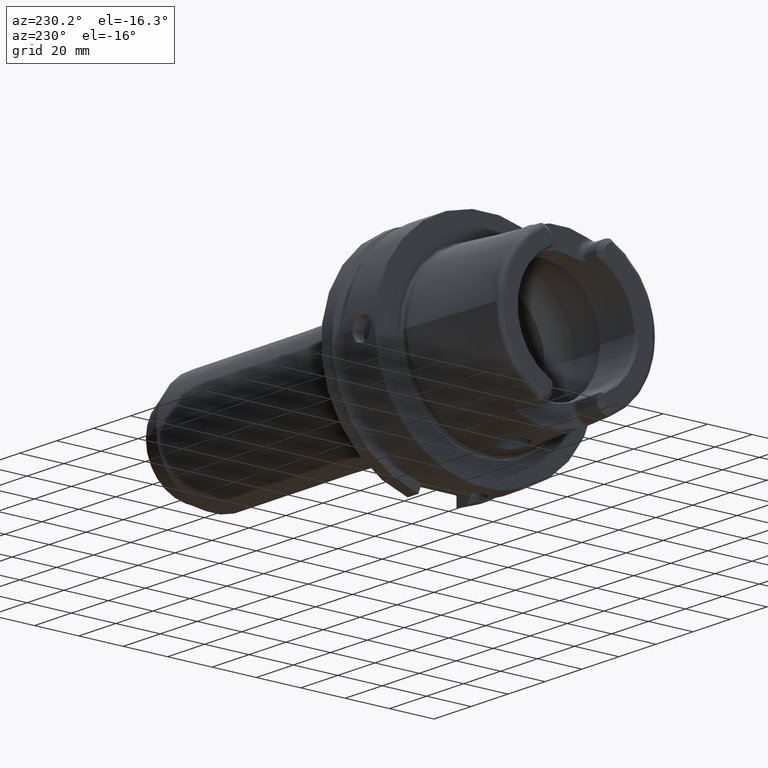
[diagram: clean part render]
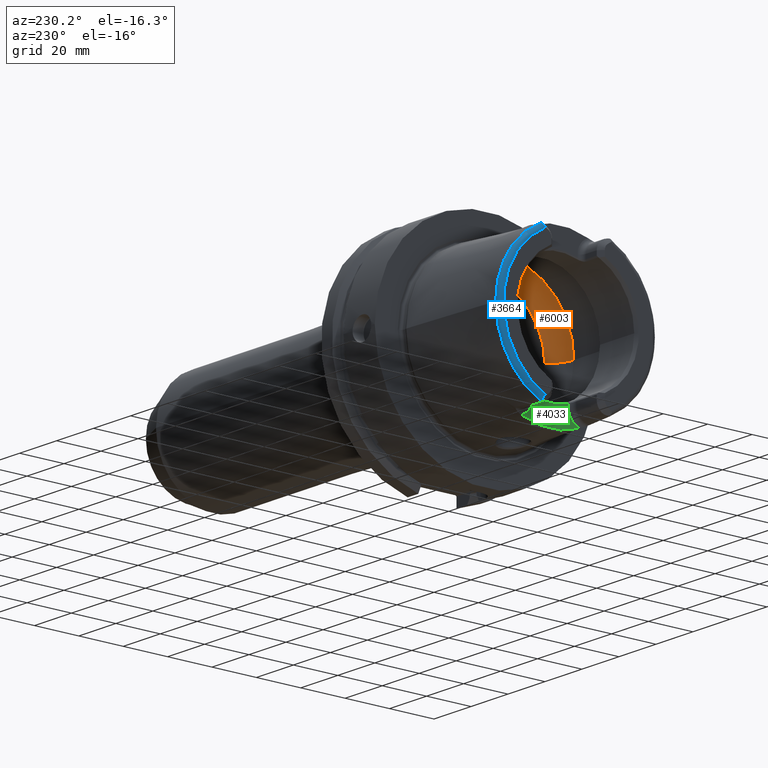
[diagram: same view with three faces highlighted in distinct colors, each labeled with its STEP entity id]
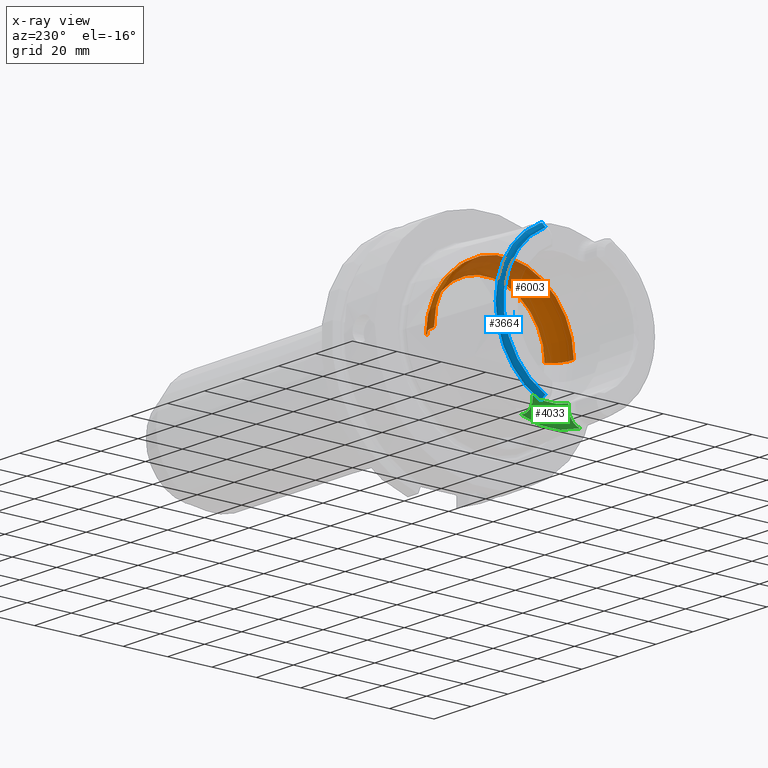
[diagram: x-ray of the same camera — body ghosted, the three highlighted faces saturated]
A machine part, auxiliary view with three faces highlighted in distinct colors.
The next image is the same camera in x-ray (body ghosted, the three faces saturated) — at least one of them is partly hidden behind the body in this view.
Their STEP definitions:

[orange] entity #6003 — the highlighted toroidal blend (fillet) surface has major radius 19.5 mm and minor (blend) radius 12 mm.
#2250=CARTESIAN_POINT('',(-9.E0,0.E0,3.147008518506E1));
#2251=CARTESIAN_POINT('',(-9.E0,2.141252053900E-1,3.147008518506E1));
#2252=CARTESIAN_POINT('',(-9.022897579641E0,6.436731047292E-1,
3.146736073712E1));
#2253=CARTESIAN_POINT('',(-9.127427069178E0,1.286248325661E0,3.145454181001E1));
#2254=CARTESIAN_POINT('',(-9.301031145484E0,1.913730198969E0,3.143197920586E1));
#2255=CARTESIAN_POINT('',(-9.539946842554E0,2.515068696018E0,3.139832080387E1));
#2256=CARTESIAN_POINT('',(-9.738529982809E0,2.891645116602E0,3.136752560017E1));
#2257=CARTESIAN_POINT('',(-9.846794344809E0,3.073185883624E0,3.134972932139E1));
#2259=CARTESIAN_POINT('',(-9.846794344809E0,-3.073185883624E0,
3.134972932139E1));
#2260=CARTESIAN_POINT('',(-9.738534471789E0,-2.891652643851E0,
3.136752486228E1));
#2261=CARTESIAN_POINT('',(-9.539946477828E0,-2.515078628379E0,
3.139832107651E1));
#2262=CARTESIAN_POINT('',(-9.300974895981E0,-1.913573808680E0,
3.143198691417E1));
#2263=CARTESIAN_POINT('',(-9.127396838585E0,-1.286102505522E0,
3.145454553504E1));
#2264=CARTESIAN_POINT('',(-9.022886850943E0,-6.435548392987E-1,
3.146736203025E1));
#2265=CARTESIAN_POINT('',(-9.E0,-2.140793620984E-1,3.147008518506E1));
#2266=CARTESIAN_POINT('',(-9.E0,0.E0,3.147008518506E1));
#2268=CARTESIAN_POINT('',(-1.E-1,0.E0,0.E0));
#2269=DIRECTION('',(1.E0,0.E0,0.E0));
#2270=DIRECTION('',(0.E0,1.E0,0.E0));
#2271=AXIS2_PLACEMENT_3D('',#2268,#2269,#2270);
#2297=CARTESIAN_POINT('',(-9.846794344809E0,0.E0,0.E0));
#2298=DIRECTION('',(1.E0,0.E0,0.E0));
#2299=DIRECTION('',(0.E0,1.E0,0.E0));
#2300=AXIS2_PLACEMENT_3D('',#2297,#2298,#2299);
#2302=CARTESIAN_POINT('',(-9.846794344809E0,0.E0,0.E0));
#2303=DIRECTION('',(1.E0,0.E0,0.E0));
#2304=DIRECTION('',(0.E0,-9.756145662299E-2,9.952295022665E-1));
#2305=AXIS2_PLACEMENT_3D('',#2302,#2303,#2304);
#2406=CARTESIAN_POINT('',(-9.846794344809E0,1.95E1,0.E0));
#2407=DIRECTION('',(0.E0,0.E0,1.E0));
#2408=DIRECTION('',(8.122328620674E-1,5.833333333333E-1,0.E0));
#2409=AXIS2_PLACEMENT_3D('',#2406,#2407,#2408);
#2416=CARTESIAN_POINT('',(-9.846794344809E0,-1.95E1,0.E0));
#2417=DIRECTION('',(0.E0,0.E0,-1.E0));
#2418=DIRECTION('',(8.122328620674E-1,-5.833333333333E-1,0.E0));
#2419=AXIS2_PLACEMENT_3D('',#2416,#2417,#2418);
#2921=CARTESIAN_POINT('',(-1.E-1,2.65E1,0.E0));
#2922=VERTEX_POINT('',#2921);
#2923=CARTESIAN_POINT('',(-9.846794344809E0,3.15E1,0.E0));
#2924=VERTEX_POINT('',#2923);
#2933=CARTESIAN_POINT('',(-1.E-1,-2.65E1,0.E0));
#2934=VERTEX_POINT('',#2933);
#2935=CARTESIAN_POINT('',(-9.846794344809E0,-3.15E1,0.E0));
#2936=VERTEX_POINT('',#2935);
#3102=VERTEX_POINT('',#2250);
#3103=VERTEX_POINT('',#2257);
#3104=VERTEX_POINT('',#2259);
#5984=CARTESIAN_POINT('',(-9.846794344809E0,0.E0,0.E0));
#5985=DIRECTION('',(1.E0,0.E0,0.E0));
#5986=DIRECTION('',(0.E0,-1.E0,0.E0));
#5987=AXIS2_PLACEMENT_3D('',#5984,#5985,#5986);
#5988=TOROIDAL_SURFACE('',#5987,1.95E1,1.2E1);
#5989=ORIENTED_EDGE('',*,*,#5961,.F.);
#5990=ORIENTED_EDGE('',*,*,#5687,.F.);
#5992=ORIENTED_EDGE('',*,*,#5991,.T.);
#5994=ORIENTED_EDGE('',*,*,#5993,.F.);
#5996=ORIENTED_EDGE('',*,*,#5995,.F.);
#5998=ORIENTED_EDGE('',*,*,#5997,.T.);
#6000=ORIENTED_EDGE('',*,*,#5999,.T.);
#6001=EDGE_LOOP('',(#5989,#5990,#5992,#5994,#5996,#5998,#6000));
#6002=FACE_OUTER_BOUND('',#6001,.F.);
#6003=ADVANCED_FACE('',(#6002),#5988,.F.);
#2258=B_SPLINE_CURVE_WITH_KNOTS('',3,(#2250,#2251,#2252,#2253,#2254,#2255,#2256,
#2257),.UNSPECIFIED.,.F.,.F.,(4,1,1,1,1,4),(0.E0,2.E-1,4.E-1,6.E-1,8.E-1,1.E0),
.UNSPECIFIED.);
#2267=B_SPLINE_CURVE_WITH_KNOTS('',3,(#2259,#2260,#2261,#2262,#2263,#2264,#2265,
#2266),.UNSPECIFIED.,.F.,.F.,(4,1,1,1,1,4),(0.E0,2.E-1,4.E-1,6.E-1,8.E-1,1.E0),
.UNSPECIFIED.);
#2272=CIRCLE('',#2271,2.65E1);
#2301=CIRCLE('',#2300,3.15E1);
#2306=CIRCLE('',#2305,3.15E1);
#2410=CIRCLE('',#2409,1.2E1);
#2420=CIRCLE('',#2419,1.2E1);
#5687=EDGE_CURVE('',#3104,#3102,#2267,.T.);
#5961=EDGE_CURVE('',#3102,#3103,#2258,.T.);
#5991=EDGE_CURVE('',#3104,#2936,#2306,.T.);
#5993=EDGE_CURVE('',#2934,#2936,#2420,.T.);
#5995=EDGE_CURVE('',#2922,#2934,#2272,.T.);
#5997=EDGE_CURVE('',#2922,#2924,#2410,.T.);
#5999=EDGE_CURVE('',#2924,#3103,#2301,.T.);

[blue] entity #3664 — the highlighted toroidal blend (fillet) surface has major radius 33.6002 mm and minor (blend) radius 2 mm.
#284=CARTESIAN_POINT('',(-4.885415732441E1,1.524233599545E1,-3.196E1));
#285=CARTESIAN_POINT('',(-4.892042682917E1,1.528184575722E1,-3.190647917074E1));
#286=CARTESIAN_POINT('',(-4.904907337055E1,1.534921107261E1,-3.179688001462E1));
#287=CARTESIAN_POINT('',(-4.923089295558E1,1.541590864687E1,-3.162456500561E1));
#288=CARTESIAN_POINT('',(-4.939996141290E1,1.544678596655E1,-3.144531182725E1));
#289=CARTESIAN_POINT('',(-4.955291678113E1,1.544062482823E1,-3.126231590503E1));
#290=CARTESIAN_POINT('',(-4.968961398491E1,1.539492909283E1,-3.107422253444E1));
#291=CARTESIAN_POINT('',(-4.980222556701E1,1.531137807264E1,-3.089122966690E1));
#292=CARTESIAN_POINT('',(-4.98920182E1,1.518913217588E1,-3.071134017670E1));
#293=CARTESIAN_POINT('',(-4.995490319930E1,1.503380242251E1,-3.054277251898E1));
#294=CARTESIAN_POINT('',(-4.999193874033E1,1.484926520259E1,-3.038665452223E1));
#295=CARTESIAN_POINT('',(-5.E1,1.470886141623E1,-3.029144627288E1));
#296=CARTESIAN_POINT('',(-5.E1,1.463423248617E1,-3.024586108239E1));
#298=CARTESIAN_POINT('',(-4.810007448473E1,1.567653238626E1,-3.196E1));
#299=CARTESIAN_POINT('',(-4.814854926161E1,1.567101764283E1,-3.196E1));
#300=CARTESIAN_POINT('',(-4.824699718528E1,1.565188578280E1,-3.196E1));
#301=CARTESIAN_POINT('',(-4.840101233225E1,1.559467216883E1,-3.196E1));
#302=CARTESIAN_POINT('',(-4.855439166438E1,1.550852477714E1,-3.196E1));
#303=CARTESIAN_POINT('',(-4.870516089830E1,1.539385143023E1,-3.196E1));
#304=CARTESIAN_POINT('',(-4.880487439669E1,1.529641023181E1,-3.196E1));
#305=CARTESIAN_POINT('',(-4.885415732441E1,1.524233599545E1,-3.196E1));
#307=CARTESIAN_POINT('',(-4.810007448473E1,0.E0,0.E0));
#308=DIRECTION('',(-1.E0,0.E0,0.E0));
#309=DIRECTION('',(0.E0,1.E0,0.E0));
#310=AXIS2_PLACEMENT_3D('',#307,#308,#309);
#312=CARTESIAN_POINT('',(-4.810007448473E1,0.E0,0.E0));
#313=DIRECTION('',(1.E0,0.E0,0.E0));
#314=DIRECTION('',(0.E0,1.E0,0.E0));
#315=AXIS2_PLACEMENT_3D('',#312,#313,#314);
#317=CARTESIAN_POINT('',(-4.885415732441E1,1.524233599545E1,3.196E1));
#318=CARTESIAN_POINT('',(-4.880489671373E1,1.529638574510E1,3.196E1));
#319=CARTESIAN_POINT('',(-4.870522589790E1,1.539380534287E1,3.196E1));
#320=CARTESIAN_POINT('',(-4.855425205604E1,1.550861743949E1,3.196E1));
#321=CARTESIAN_POINT('',(-4.840102922174E1,1.559466231398E1,3.196E1));
#322=CARTESIAN_POINT('',(-4.824685927015E1,1.565193052527E1,3.196E1));
#323=CARTESIAN_POINT('',(-4.814849310230E1,1.567102403180E1,3.196E1));
#324=CARTESIAN_POINT('',(-4.810007448473E1,1.567653238626E1,3.196E1));
#326=CARTESIAN_POINT('',(-5.E1,1.463423248617E1,3.024586108239E1));
#327=CARTESIAN_POINT('',(-5.E1,1.470887052533E1,3.029145183695E1));
#328=CARTESIAN_POINT('',(-4.999193668301E1,1.484929336697E1,3.038667413649E1));
#329=CARTESIAN_POINT('',(-4.995488930905E1,1.503385996795E1,3.054282394569E1));
#330=CARTESIAN_POINT('',(-4.989197500232E1,1.518921649175E1,3.071144229779E1));
#331=CARTESIAN_POINT('',(-4.980215470263E1,1.531145218524E1,3.089135797532E1));
#332=CARTESIAN_POINT('',(-4.968951481558E1,1.539498007461E1,3.107436988164E1));
#333=CARTESIAN_POINT('',(-4.955280820452E1,1.544064650585E1,3.126245637594E1));
#334=CARTESIAN_POINT('',(-4.939976008409E1,1.544677878772E1,3.144554335861E1));
#335=CARTESIAN_POINT('',(-4.923056226109E1,1.541582067272E1,3.162489877544E1));
#336=CARTESIAN_POINT('',(-4.904873698401E1,1.534905210810E1,3.179717709171E1));
#337=CARTESIAN_POINT('',(-4.892028850269E1,1.528176328722E1,3.190659088650E1));
#338=CARTESIAN_POINT('',(-4.885415732441E1,1.524233599545E1,3.196E1));
#340=CARTESIAN_POINT('',(-5.E1,0.E0,0.E0));
#341=DIRECTION('',(-1.E0,0.E0,0.E0));
#342=DIRECTION('',(0.E0,4.355401503799E-1,9.001693048572E-1));
#343=AXIS2_PLACEMENT_3D('',#340,#341,#342);
#2905=CARTESIAN_POINT('',(-4.810007448473E1,3.559768626831E1,0.E0));
#2906=VERTEX_POINT('',#2905);
#2945=CARTESIAN_POINT('',(-4.810007448473E1,1.567653238626E1,3.196E1));
#2946=VERTEX_POINT('',#2945);
#2977=CARTESIAN_POINT('',(-5.E1,1.463423248617E1,3.024586108239E1));
#2978=VERTEX_POINT('',#2977);
#2979=VERTEX_POINT('',#338);
#3025=CARTESIAN_POINT('',(-4.810007448473E1,1.567653238626E1,-3.196E1));
#3026=VERTEX_POINT('',#3025);
#3068=CARTESIAN_POINT('',(-5.E1,1.463423248617E1,-3.024586108239E1));
#3069=VERTEX_POINT('',#3068);
#3070=VERTEX_POINT('',#284);
#3646=CARTESIAN_POINT('',(-4.8E1,0.E0,0.E0));
#3647=DIRECTION('',(1.E0,0.E0,0.E0));
#3648=DIRECTION('',(0.E0,-1.E0,0.E0));
#3649=AXIS2_PLACEMENT_3D('',#3646,#3647,#3648);
#3650=TOROIDAL_SURFACE('',#3649,3.360019156306E1,2.E0);
#3652=ORIENTED_EDGE('',*,*,#3651,.F.);
#3654=ORIENTED_EDGE('',*,*,#3653,.F.);
#3656=ORIENTED_EDGE('',*,*,#3655,.F.);
#3657=ORIENTED_EDGE('',*,*,#3372,.T.);
#3659=ORIENTED_EDGE('',*,*,#3658,.F.);
#3660=ORIENTED_EDGE('',*,*,#3637,.F.);
#3661=ORIENTED_EDGE('',*,*,#3436,.T.);
#3662=EDGE_LOOP('',(#3652,#3654,#3656,#3657,#3659,#3660,#3661));
#3663=FACE_OUTER_BOUND('',#3662,.F.);
#3664=ADVANCED_FACE('',(#3663),#3650,.T.);
#297=B_SPLINE_CURVE_WITH_KNOTS('',3,(#284,#285,#286,#287,#288,#289,#290,#291,
#292,#293,#294,#295,#296),.UNSPECIFIED.,.F.,.F.,(4,1,1,1,1,1,1,1,1,1,4),(0.E0,
1.E-1,2.E-1,3.E-1,4.E-1,5.E-1,6.E-1,7.E-1,8.E-1,9.E-1,1.E0),.UNSPECIFIED.);
#306=B_SPLINE_CURVE_WITH_KNOTS('',3,(#298,#299,#300,#301,#302,#303,#304,#305),
.UNSPECIFIED.,.F.,.F.,(4,1,1,1,1,4),(0.E0,2.E-1,4.E-1,6.E-1,8.E-1,1.E0),
.UNSPECIFIED.);
#311=CIRCLE('',#310,3.559768626831E1);
#316=CIRCLE('',#315,3.559768626831E1);
#325=B_SPLINE_CURVE_WITH_KNOTS('',3,(#317,#318,#319,#320,#321,#322,#323,#324),
.UNSPECIFIED.,.F.,.F.,(4,1,1,1,1,4),(0.E0,2.E-1,4.E-1,6.E-1,8.E-1,1.E0),
.UNSPECIFIED.);
#339=B_SPLINE_CURVE_WITH_KNOTS('',3,(#326,#327,#328,#329,#330,#331,#332,#333,
#334,#335,#336,#337,#338),.UNSPECIFIED.,.F.,.F.,(4,1,1,1,1,1,1,1,1,1,4),(0.E0,
1.E-1,2.E-1,3.E-1,4.E-1,5.E-1,6.E-1,7.E-1,8.E-1,9.E-1,1.E0),.UNSPECIFIED.);
#344=CIRCLE('',#343,3.360019156306E1);
#3372=EDGE_CURVE('',#2906,#2946,#316,.T.);
#3436=EDGE_CURVE('',#2978,#3069,#344,.T.);
#3637=EDGE_CURVE('',#2978,#2979,#339,.T.);
#3651=EDGE_CURVE('',#3070,#3069,#297,.T.);
#3653=EDGE_CURVE('',#3026,#3070,#306,.T.);
#3655=EDGE_CURVE('',#2906,#3026,#311,.T.);
#3658=EDGE_CURVE('',#2979,#2946,#325,.T.);

[green] entity #4033 — the highlighted planar face has unit normal (-1, 0, 0).
#549=CARTESIAN_POINT('',(-3.5E1,0.E0,0.E0));
#550=DIRECTION('',(1.E0,0.E0,0.E0));
#551=DIRECTION('',(0.E0,-3.659355944317E-1,-9.306401779033E-1));
#552=AXIS2_PLACEMENT_3D('',#549,#550,#551);
#659=CARTESIAN_POINT('',(-3.5E1,1.326662904053E1,-3.373942900971E1));
#700=CARTESIAN_POINT('',(-3.5E1,-8.009999999994E0,-2.576044140549E1));
#701=CARTESIAN_POINT('',(-3.5E1,-7.269616392494E0,-2.599521452766E1));
#702=CARTESIAN_POINT('',(-3.5E1,-5.774680607735E0,-2.639793295020E1));
#703=CARTESIAN_POINT('',(-3.5E1,-3.481759859027E0,-2.680464578135E1));
#704=CARTESIAN_POINT('',(-3.5E1,-1.163574268408E0,-2.700848033442E1));
#705=CARTESIAN_POINT('',(-3.5E1,1.163574229636E0,-2.700848033529E1));
#706=CARTESIAN_POINT('',(-3.5E1,3.481759771636E0,-2.680464579107E1));
#707=CARTESIAN_POINT('',(-3.5E1,5.774680487919E0,-2.639793297771E1));
#708=CARTESIAN_POINT('',(-3.5E1,7.269616343063E0,-2.599521454333E1));
#709=CARTESIAN_POINT('',(-3.5E1,8.009999999993E0,-2.576044140549E1));
#711=DIRECTION('',(0.E0,-5.262912738182E-12,-1.E0));
#712=VECTOR('',#711,1.199558594507E0);
#713=CARTESIAN_POINT('',(-3.5E1,-8.009999999994E0,-2.576044140549E1));
#714=LINE('',#713,#712);
#715=CARTESIAN_POINT('',(-3.5E1,-1.501E1,-2.696E1));
#716=DIRECTION('',(-1.E0,0.E0,0.E0));
#717=DIRECTION('',(0.E0,1.E0,0.E0));
#718=AXIS2_PLACEMENT_3D('',#715,#716,#717);
#720=CARTESIAN_POINT('',(-3.5E1,1.501E1,-2.696E1));
#721=DIRECTION('',(-1.E0,0.E0,0.E0));
#722=DIRECTION('',(0.E0,-2.490529942106E-1,-9.684898585296E-1));
#723=AXIS2_PLACEMENT_3D('',#720,#721,#722);
#725=DIRECTION('',(0.E0,-6.865183864462E-12,1.E0));
#726=VECTOR('',#725,1.199558594503E0);
#727=CARTESIAN_POINT('',(-3.5E1,8.010000000001E0,-2.695999999999E1));
#728=LINE('',#727,#726);
#799=CARTESIAN_POINT('',(-3.5E1,-1.326662904053E1,-3.373942900971E1));
#3033=VERTEX_POINT('',#799);
#3034=VERTEX_POINT('',#659);
#3038=CARTESIAN_POINT('',(-3.5E1,-8.01E0,-2.696E1));
#3040=VERTEX_POINT('',#3038);
#3042=CARTESIAN_POINT('',(-3.5E1,8.01E0,-2.696E1));
#3044=VERTEX_POINT('',#3042);
#3050=VERTEX_POINT('',#700);
#3051=VERTEX_POINT('',#709);
#4018=CARTESIAN_POINT('',(-3.5E1,0.E0,0.E0));
#4019=DIRECTION('',(-1.E0,0.E0,0.E0));
#4020=DIRECTION('',(0.E0,0.E0,1.E0));
#4021=AXIS2_PLACEMENT_3D('',#4018,#4019,#4020);
#4022=PLANE('',#4021);
#4023=ORIENTED_EDGE('',*,*,#4009,.F.);
#4025=ORIENTED_EDGE('',*,*,#4024,.T.);
#4027=ORIENTED_EDGE('',*,*,#4026,.T.);
#4028=ORIENTED_EDGE('',*,*,#3857,.T.);
#4029=ORIENTED_EDGE('',*,*,#3915,.T.);
#4030=ORIENTED_EDGE('',*,*,#3927,.T.);
#4031=EDGE_LOOP('',(#4023,#4025,#4027,#4028,#4029,#4030));
#4032=FACE_OUTER_BOUND('',#4031,.F.);
#4033=ADVANCED_FACE('',(#4032),#4022,.T.);
#553=CIRCLE('',#552,3.6254E1);
#710=B_SPLINE_CURVE_WITH_KNOTS('',3,(#700,#701,#702,#703,#704,#705,#706,#707,
#708,#709),.UNSPECIFIED.,.F.,.F.,(4,1,1,1,1,1,1,4),(0.E0,1.428571428571E-1,
2.857142857143E-1,4.285714285714E-1,5.714285714286E-1,7.142857142857E-1,
8.571428571429E-1,1.E0),.UNSPECIFIED.);
#719=CIRCLE('',#718,7.E0);
#724=CIRCLE('',#723,7.E0);
#3857=EDGE_CURVE('',#3033,#3034,#553,.T.);
#3915=EDGE_CURVE('',#3034,#3044,#724,.T.);
#3927=EDGE_CURVE('',#3044,#3051,#728,.T.);
#4009=EDGE_CURVE('',#3050,#3051,#710,.T.);
#4024=EDGE_CURVE('',#3050,#3040,#714,.T.);
#4026=EDGE_CURVE('',#3040,#3033,#719,.T.);